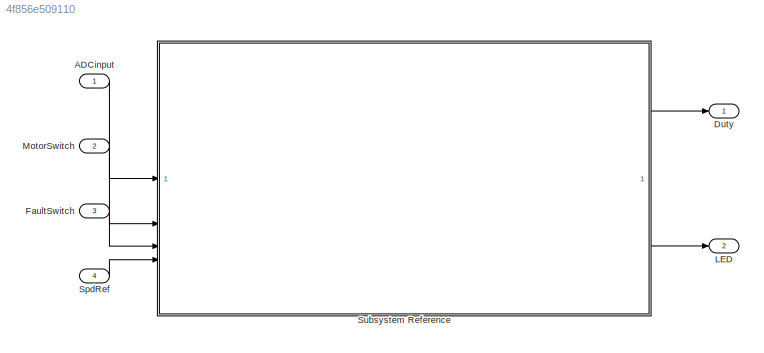
MODEL slx_4f856e509110
KIND model
CONFIG AbsTol = auto
CONFIG EnableMultiTasking = off
CONFIG FixedStep = Tctr
CONFIG InitFcn = %mbd_s32k_consistency_checks(bdroot(gcs));
CONFIG MaxStep = auto
CONFIG MinStep = auto
CONFIG RelTol = 1e-3
CONFIG SampleTimeConstraint = Unconstrained
CONFIG SolverName = FixedStepDiscrete
CONFIG StartTime = 0.0
CONFIG StopTime = 10.0
BLOCK [Inport] ADCinput
  OutDataTypeStr = uint16
  PortDimensions = 5
BLOCK [Outport] Duty
  OutDataTypeStr = single
  PortDimensions = 3
BLOCK [Inport] FaultSwitch
  OutDataTypeStr = boolean
  Port = 3
  PortDimensions = 1
BLOCK [Outport] LED
  OutDataTypeStr = boolean
  Port = 2
  PortDimensions = 3
BLOCK [Inport] MotorSwitch
  OutDataTypeStr = boolean
  Port = 2
  PortDimensions = 1
BLOCK [Inport] SpdRef
  OutDataTypeStr = int16
  Port = 4
BLOCK [SubSystem] Subsystem Reference
  ReferencedSubsystem = FOC_Sub_StateMch
LINE ADCinput:1 -> Subsystem Reference:1
LINE FaultSwitch:1 -> Subsystem Reference:3
LINE MotorSwitch:1 -> Subsystem Reference:2
LINE SpdRef:1 -> Subsystem Reference:4
LINE Subsystem Reference:1 -> Duty:1
LINE Subsystem Reference:2 -> LED:1
